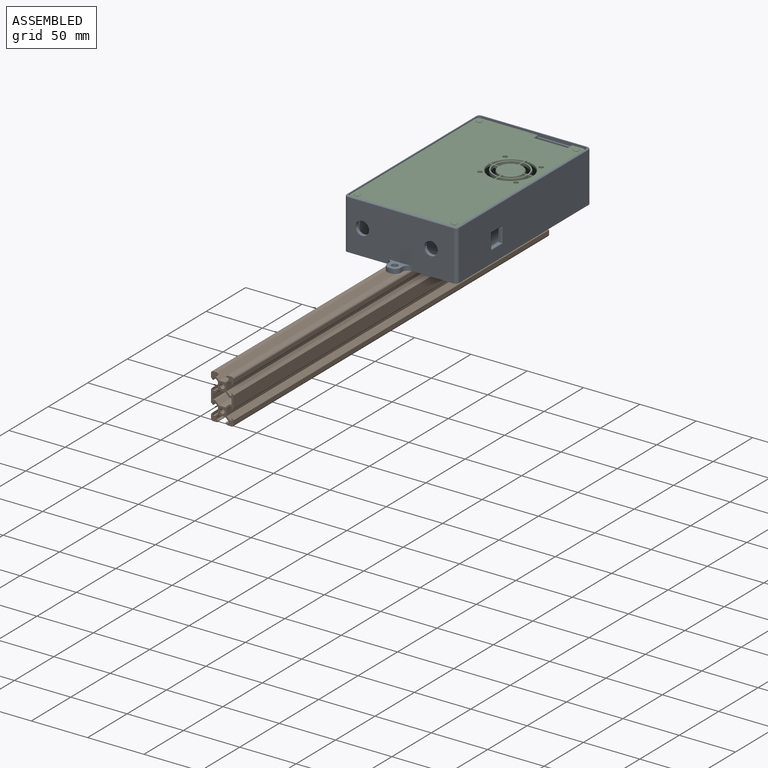
[diagram: assembled view]
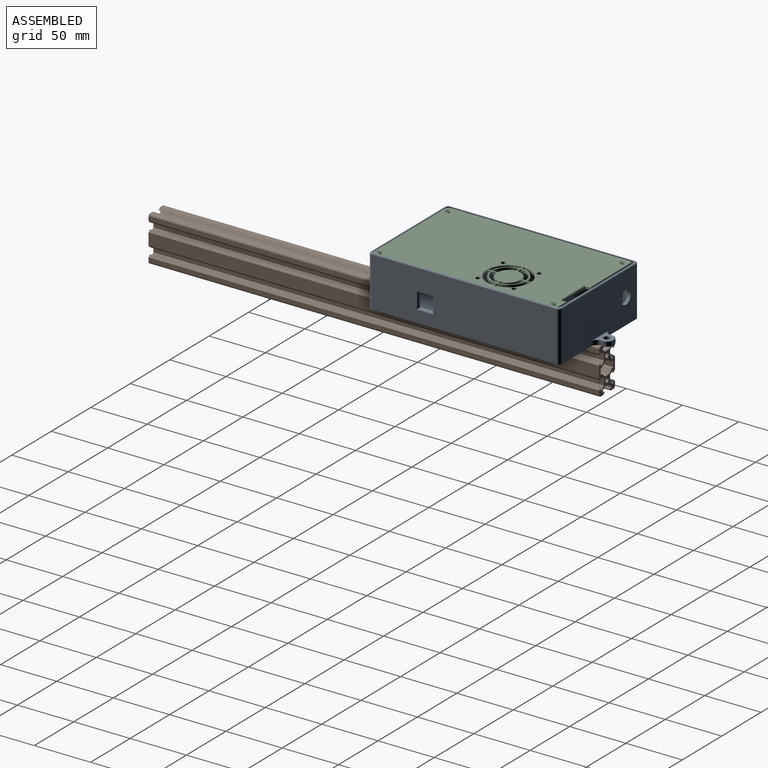
[diagram: assembled view, second angle]
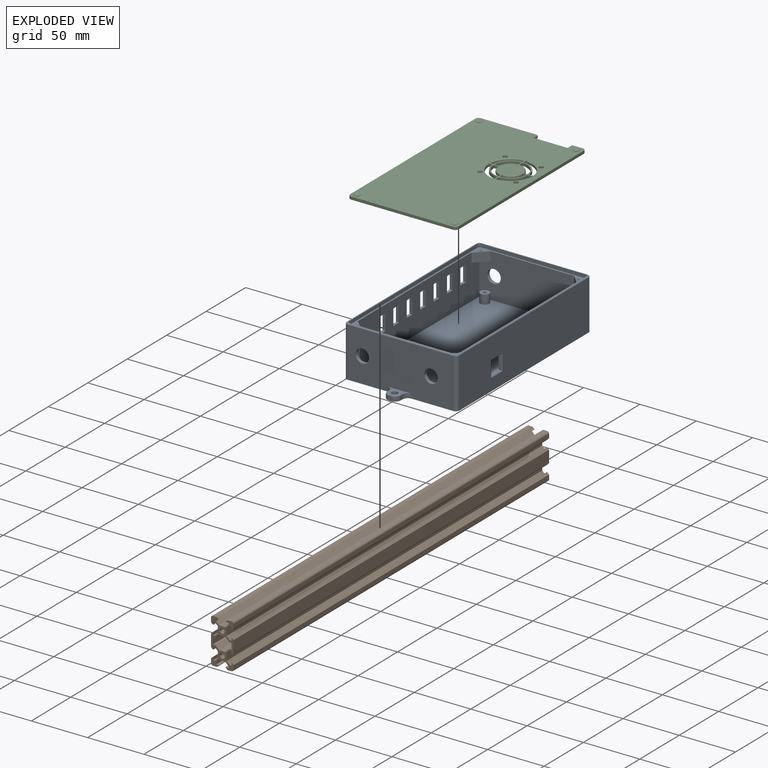
[diagram: exploded view]
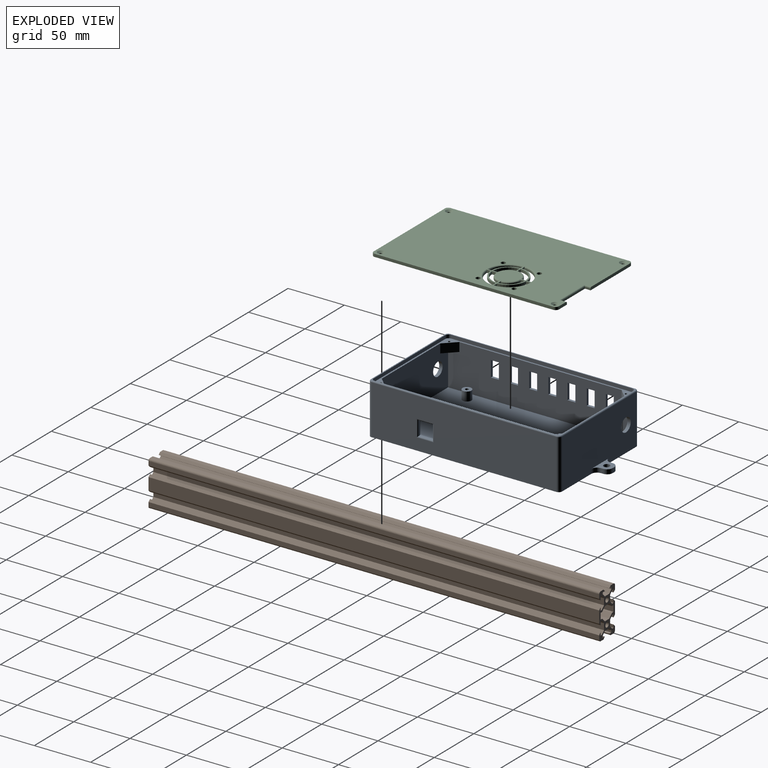
[diagram: exploded view, second angle]
ASSEMBLY  parts=3 mates=2
PART A: 149 faces, bbox 100.5x194x45 mm
  f0: plane 94x44mm, normal (0,-1,0), area 3821.8mm2, adj f8,f64,f65,f67,f70,f93,f138,f143
  f1: plane 164x39mm, normal (-1,0,0), area 6067mm2, adj f2,f13,f14,f15,f32,f33,f34,f35
  f2: plane 94x39mm, normal (0,-1,0), area 3392.9mm2, adj f1,f4,f13,f14,f66,f75,f76,f77
  f3: plane 164x44mm, normal (-1,0,0), area 6208mm2, adj f8,f69,f70,f97,f99,f100,f101,f102
  f4: plane 164x39mm, normal (1,0,0), area 5550mm2, adj f2,f13,f14,f15,f36,f37,f38,f39
  f5: plane 168x98mm, normal (0,0,1), area 322.1mm2, adj f9,f10,f11,f12,f71,f72,f73,f74
  f6: plane 164x44mm, normal (1,0,0), area 6991mm2, adj f8,f67,f68,f92,f127,f128,f129,f130
  f7: plane 94x44mm, normal (0,1,0), area 3934.9mm2, adj f8,f66,f68,f69,f96,f134,f145,f146
  f8: plane 194x100mm, normal (0,0,-1), area 17232.8mm2, adj f0,f3,f6,f7,f67,f68,f69,f70
  f9: plane 90.8x3mm, normal (0,-1,0), area 272.4mm2, adj f5,f13,f71,f74
  f10: plane 160.8x3mm, normal (1,0,0), area 482.4mm2, adj f5,f13,f71,f72
  f11: plane 90.8x3mm, normal (0,1,0), area 272.4mm2, adj f5,f13,f72,f73
  f12: plane 160.8x3mm, normal (-1,0,0), area 482.4mm2, adj f5,f13,f73,f74
  f13: plane 166.8x96.8mm, normal (0,0,1), area 909.9mm2, adj f1,f2,f4,f9,f10,f11,f12,f15
  f14: plane 164x94mm, normal (0,0,1), area 15214.9mm2, adj f1,f2,f4,f15,f17,f21,f25,f29
  f15: plane 94x39mm, normal (0,1,0), area 3279.8mm2, adj f1,f4,f13,f14,f64,f65,f79,f80
  f16: cylinder r=1.5mm len=8mm, axis (0,0,-1), area 75.4mm2, adj f18,f19
  f17: cylinder r=4mm len=8mm, axis (0,0,-1), area 201.1mm2, adj f14,f18
  f18: plane 8x8mm, normal (0,0,1), area 43.2mm2, adj f16,f17
  f19: plane 3x3mm, normal (0,0,1), area 7.1mm2, adj f16
  f20: cylinder r=1.5mm len=8mm, axis (0,0,-1), area 75.4mm2, adj f22,f23
  f21: cylinder r=4mm len=8mm, axis (0,0,-1), area 201.1mm2, adj f14,f22
  f22: plane 8x8mm, normal (0,0,1), area 43.2mm2, adj f20,f21
  f23: plane 3x3mm, normal (0,0,1), area 7.1mm2, adj f20
  f24: cylinder r=1.5mm len=8mm, axis (0,0,-1), area 75.4mm2, adj f26,f27
  f25: cylinder r=4mm len=8mm, axis (0,0,-1), area 201.1mm2, adj f14,f26
  f26: plane 8x8mm, normal (0,0,1), area 43.2mm2, adj f24,f25
  f27: plane 3x3mm, normal (0,0,1), area 7.1mm2, adj f24
  f28: cylinder r=1.5mm len=8mm, axis (0,0,-1), area 75.4mm2, adj f30,f31
  f29: cylinder r=4mm len=8mm, axis (0,0,-1), area 201.1mm2, adj f14,f30
  f30: plane 8x8mm, normal (0,0,1), area 43.2mm2, adj f28,f29
  f31: plane 3x3mm, normal (0,0,1), area 7.1mm2, adj f28
  f32: plane 13x2mm, normal (0,1,0), area 26mm2, adj f1,f33,f34,f128
  f33: plane 13x2mm, normal (0,0,-1), area 26mm2, adj f1,f32,f35,f127
  f34: plane 13x2mm, normal (0,0,1), area 26mm2, adj f1,f32,f35,f130
  f35: plane 13x2mm, normal (0,-1,0), area 26mm2, adj f1,f33,f34,f129
  f36: plane 7x2mm, normal (0,0,1), area 14mm2, adj f4,f37,f39,f124
  f37: plane 14x2mm, normal (0,1,0), area 28mm2, adj f4,f36,f38,f126
  f38: plane 7x2mm, normal (0,0,-1), area 14mm2, adj f4,f37,f39,f125
  f39: plane 14x2mm, normal (0,-1,0), area 28mm2, adj f4,f36,f38,f123
  f40: plane 7x2mm, normal (0,0,1), area 14mm2, adj f4,f41,f43,f119
  f41: plane 14x2mm, normal (0,1,0), area 28mm2, adj f4,f40,f42,f120
  f42: plane 7x2mm, normal (0,0,-1), area 14mm2, adj f4,f41,f43,f122
  f43: plane 14x2mm, normal (0,-1,0), area 28mm2, adj f4,f40,f42,f121
  f44: plane 7x2mm, normal (0,0,1), area 14mm2, adj f4,f45,f47,f116
  f45: plane 14x2mm, normal (0,1,0), area 28mm2, adj f4,f44,f46,f118
  f46: plane 7x2mm, normal (0,0,-1), area 14mm2, adj f4,f45,f47,f117
  f47: plane 14x2mm, normal (0,-1,0), area 28mm2, adj f4,f44,f46,f115
  f48: plane 7x2mm, normal (0,0,1), area 14mm2, adj f4,f49,f51,f112
  f49: plane 14x2mm, normal (0,1,0), area 28mm2, adj f4,f48,f50,f114
  f50: plane 7x2mm, normal (0,0,-1), area 14mm2, adj f4,f49,f51,f113
  f51: plane 14x2mm, normal (0,-1,0), area 28mm2, adj f4,f48,f50,f111
  f52: plane 7x2mm, normal (0,0,1), area 14mm2, adj f4,f53,f55,f108
  f53: plane 14x2mm, normal (0,1,0), area 28mm2, adj f4,f52,f54,f110
  f54: plane 7x2mm, normal (0,0,-1), area 14mm2, adj f4,f53,f55,f109
  f55: plane 14x2mm, normal (0,-1,0), area 28mm2, adj f4,f52,f54,f107
  f56: plane 7x2mm, normal (0,0,1), area 14mm2, adj f4,f57,f59,f104
  f57: plane 14x2mm, normal (0,1,0), area 28mm2, adj f4,f56,f58,f106
  f58: plane 7x2mm, normal (0,0,-1), area 14mm2, adj f4,f57,f59,f105
  f59: plane 14x2mm, normal (0,-1,0), area 28mm2, adj f4,f56,f58,f103
  f60: plane 7x2mm, normal (0,0,-1), area 14mm2, adj f4,f61,f63,f100
  f61: plane 14x2mm, normal (0,-1,0), area 28mm2, adj f4,f60,f62,f102
  f62: plane 7x2mm, normal (0,0,1), area 14mm2, adj f4,f61,f63,f101
  f63: plane 14x2mm, normal (0,1,0), area 28mm2, adj f4,f60,f62,f99
  f64: cylinder r=6mm len=12mm, axis (0,-1,0), area 113.1mm2, adj f0,f15
  f65: cylinder r=6mm len=12mm, axis (0,1,0), area 113.1mm2, adj f0,f15
  f66: cylinder r=6mm len=12mm, axis (0,1,0), area 113.1mm2, adj f2,f7
  f67: cylinder r=3mm len=44mm, axis (0,0,1), area 207.3mm2, adj f0,f6,f8,f91
  f68: cylinder r=3mm len=44mm, axis (0,0,-1), area 207.3mm2, adj f6,f7,f8,f94
  f69: cylinder r=3mm len=44mm, axis (0,0,1), area 207.3mm2, adj f3,f7,f8,f98
  f70: cylinder r=3mm len=44mm, axis (0,0,-1), area 207.3mm2, adj f0,f3,f8,f95
  f71: cylinder r=3mm len=3mm, axis (0,0,1), area 14.1mm2, adj f5,f9,f10,f13
  f72: cylinder r=3mm len=3mm, axis (0,0,-1), area 14.1mm2, adj f5,f10,f11,f13
  f73: cylinder r=3mm len=3mm, axis (0,0,1), area 14.1mm2, adj f5,f11,f12,f13
  f74: cylinder r=3mm len=3mm, axis (0,0,-1), area 14.1mm2, adj f5,f9,f12,f13
  f75: plane 10x10mm, normal (0.71,-0.71,0), area 113.1mm2, adj f2,f4,f13,f76
  f76: plane 10x10mm, normal (0,0,-1), area 50mm2, adj f2,f4,f75
  f77: plane 10x10mm, normal (-0.71,-0.71,0), area 113.1mm2, adj f1,f2,f13,f78
  f78: plane 10x10mm, normal (0,0,-1), area 50mm2, adj f1,f2,f77
  f79: plane 10x10mm, normal (-0.71,0.71,0), area 113.1mm2, adj f1,f13,f15,f80
  f80: plane 10x10mm, normal (0,0,-1), area 50mm2, adj f1,f15,f79
  f81: plane 10x10mm, normal (0.71,0.71,0), area 113.1mm2, adj f4,f13,f15,f82
  f82: plane 10x10mm, normal (0,0,-1), area 50mm2, adj f4,f15,f81
  f83: cone r=0mm half-angle=59deg, axis (0,0,1), area 3.7mm2, adj f84
  f84: cylinder r=1mm len=6mm, axis (0,0,1), area 37.7mm2, adj f13,f83
  f85: cone r=0mm half-angle=59deg, axis (0,0,1), area 3.7mm2, adj f86
  f86: cylinder r=1mm len=6mm, axis (0,0,1), area 37.7mm2, adj f13,f85
  f87: cone r=0mm half-angle=59deg, axis (0,0,1), area 3.7mm2, adj f88
  f88: cylinder r=1mm len=6mm, axis (0,0,1), area 37.7mm2, adj f13,f87
  f89: cone r=0mm half-angle=59deg, axis (0,0,1), area 3.7mm2, adj f90
  f90: cylinder r=1mm len=6mm, axis (0,0,1), area 37.7mm2, adj f13,f89
  f91: torus R=2mm, axis (0,0,1), area 6.5mm2, adj f5,f67,f92,f93
  f92: cylinder r=1mm len=164mm, axis (0,-1,0), area 257.6mm2, adj f5,f6,f91,f94
  f93: cylinder r=1mm len=94mm, axis (-1,0,0), area 147.7mm2, adj f0,f5,f91,f95
  f94: torus R=2mm, axis (0,0,1), area 6.5mm2, adj f5,f68,f92,f96
  f95: torus R=2mm, axis (0,0,1), area 6.5mm2, adj f5,f70,f93,f97
  f96: cylinder r=1mm len=94mm, axis (1,0,0), area 147.7mm2, adj f5,f7,f94,f98
  f97: cylinder r=1mm len=164mm, axis (0,1,0), area 257.6mm2, adj f3,f5,f95,f98
  f98: torus R=2mm, axis (0,0,1), area 6.5mm2, adj f5,f69,f96,f97
  f99: cylinder r=1mm len=16mm, axis (0,0,-1), area 23.1mm2, adj f3,f63,f100,f101
  f100: cylinder r=1mm len=9mm, axis (0,-1,0), area 12.1mm2, adj f3,f60,f99,f102
  f101: cylinder r=1mm len=9mm, axis (0,1,0), area 12.1mm2, adj f3,f62,f99,f102
  f102: cylinder r=1mm len=16mm, axis (0,0,1), area 23.1mm2, adj f3,f61,f100,f101
  f103: cylinder r=1mm len=16mm, axis (0,0,1), area 23.1mm2, adj f3,f59,f104,f105
  f104: cylinder r=1mm len=9mm, axis (0,1,0), area 12.1mm2, adj f3,f56,f103,f106
  f105: cylinder r=1mm len=9mm, axis (0,-1,0), area 12.1mm2, adj f3,f58,f103,f106
  f106: cylinder r=1mm len=16mm, axis (0,0,-1), area 23.1mm2, adj f3,f57,f104,f105
  f107: cylinder r=1mm len=16mm, axis (0,0,1), area 23.1mm2, adj f3,f55,f108,f109
  f108: cylinder r=1mm len=9mm, axis (0,1,0), area 12.1mm2, adj f3,f52,f107,f110
  f109: cylinder r=1mm len=9mm, axis (0,-1,0), area 12.1mm2, adj f3,f54,f107,f110
  f110: cylinder r=1mm len=16mm, axis (0,0,-1), area 23.1mm2, adj f3,f53,f108,f109
  f111: cylinder r=1mm len=16mm, axis (0,0,1), area 23.1mm2, adj f3,f51,f112,f113
  f112: cylinder r=1mm len=9mm, axis (0,1,0), area 12.1mm2, adj f3,f48,f111,f114
  f113: cylinder r=1mm len=9mm, axis (0,-1,0), area 12.1mm2, adj f3,f50,f111,f114
  f114: cylinder r=1mm len=16mm, axis (0,0,-1), area 23.1mm2, adj f3,f49,f112,f113
  f115: cylinder r=1mm len=16mm, axis (0,0,1), area 23.1mm2, adj f3,f47,f116,f117
  f116: cylinder r=1mm len=9mm, axis (0,1,0), area 12.1mm2, adj f3,f44,f115,f118
  f117: cylinder r=1mm len=9mm, axis (0,-1,0), area 12.1mm2, adj f3,f46,f115,f118
  f118: cylinder r=1mm len=16mm, axis (0,0,-1), area 23.1mm2, adj f3,f45,f116,f117
  f119: cylinder r=1mm len=9mm, axis (0,1,0), area 12.1mm2, adj f3,f40,f120,f121
  f120: cylinder r=1mm len=16mm, axis (0,0,-1), area 23.1mm2, adj f3,f41,f119,f122
  f121: cylinder r=1mm len=16mm, axis (0,0,1), area 23.1mm2, adj f3,f43,f119,f122
  f122: cylinder r=1mm len=9mm, axis (0,-1,0), area 12.1mm2, adj f3,f42,f120,f121
  f123: cylinder r=1mm len=16mm, axis (0,0,1), area 23.1mm2, adj f3,f39,f124,f125
  f124: cylinder r=1mm len=9mm, axis (0,1,0), area 12.1mm2, adj f3,f36,f123,f126
  f125: cylinder r=1mm len=9mm, axis (0,-1,0), area 12.1mm2, adj f3,f38,f123,f126
  f126: cylinder r=1mm len=16mm, axis (0,0,-1), area 23.1mm2, adj f3,f37,f124,f125
  f127: cylinder r=1mm len=15mm, axis (0,-1,0), area 21.6mm2, adj f6,f33,f128,f129
  f128: cylinder r=1mm len=15mm, axis (0,0,-1), area 21.6mm2, adj f6,f32,f127,f130
  f129: cylinder r=1mm len=15mm, axis (0,0,1), area 21.6mm2, adj f6,f35,f127,f130
  f130: cylinder r=1mm len=15mm, axis (0,1,0), area 21.6mm2, adj f6,f34,f128,f129
  f131: plane 4x2mm, normal (-1,0,0), area 8mm2, adj f8,f134,f145,f148
  f132: plane 4x2mm, normal (1,0,0), area 8mm2, adj f8,f134,f146,f147
  f133: plane 4x2mm, normal (0,1,0), area 8mm2, adj f8,f134,f147,f148
  f134: plane 22x12mm, normal (0,0,1), area 120.2mm2, adj f7,f131,f132,f133,f139,f145,f146,f147
  f135: plane 4x2mm, normal (-1,0,0), area 8mm2, adj f8,f138,f141,f144
  f136: plane 4x2mm, normal (0,-1,0), area 8mm2, adj f8,f138,f141,f142
  f137: plane 4x2mm, normal (1,0,0), area 8mm2, adj f8,f138,f142,f143
  f138: plane 22x12mm, normal (0,0,1), area 120.2mm2, adj f0,f135,f136,f137,f140,f141,f142,f143
  f139: cylinder r=2.75mm len=5.5mm, axis (0,0,-1), area 69.1mm2, adj f8,f134
  f140: cylinder r=2.75mm len=5.5mm, axis (0,0,-1), area 69.1mm2, adj f8,f138
  f141: cylinder r=5mm len=5mm, axis (0,0,-1), area 31.4mm2, adj f8,f135,f136,f138
  f142: cylinder r=5mm len=5mm, axis (0,0,1), area 31.4mm2, adj f8,f136,f137,f138
  f143: cylinder r=5mm len=5mm, axis (0,0,1), area 31.4mm2, adj f0,f8,f137,f138
  f144: cylinder r=5mm len=5mm, axis (0,0,-1), area 31.4mm2, adj f0,f8,f135,f138
  f145: cylinder r=5mm len=5mm, axis (0,0,-1), area 31.4mm2, adj f7,f8,f131,f134
  f146: cylinder r=5mm len=5mm, axis (0,0,1), area 31.4mm2, adj f7,f8,f132,f134
  f147: cylinder r=5mm len=5mm, axis (0,0,1), area 31.4mm2, adj f8,f132,f133,f134
  f148: cylinder r=5mm len=5mm, axis (0,0,-1), area 31.4mm2, adj f8,f131,f133,f134
PART B: 84 faces, bbox 40x20x400 mm
  f0: plane 400x1.96mm, normal (-1,0,0), area 784mm2, adj f1,f41,f82,f83
  f1: plane 400x3.4mm, normal (-0.71,0.71,0), area 1923.3mm2, adj f0,f2,f82,f83
  f2: plane 400x5.68mm, normal (-1,0,0), area 2272mm2, adj f1,f3,f82,f83
  f3: plane 400x3.4mm, normal (-0.71,-0.71,0), area 1923.3mm2, adj f2,f4,f82,f83
  f4: plane 400x1.96mm, normal (-1,0,0), area 784mm2, adj f3,f5,f82,f83
  f5: plane 400x5.4mm, normal (0,-1,0), area 2159.5mm2, adj f4,f40,f82,f83
  f6: plane 400x1.64mm, normal (-1,0,0), area 656mm2, adj f7,f81,f82,f83
  f7: plane 400x2.66mm, normal (0,-1,0), area 1063.7mm2, adj f6,f8,f82,f83
  f8: plane 400x1.8mm, normal (-0.71,0.71,0), area 1018.2mm2, adj f7,f9,f82,f83
  f9: plane 400x3.56mm, normal (0,1,0), area 1424mm2, adj f8,f10,f82,f83
  f10: cylinder r=1.8mm len=400mm, axis (0,0,1), area 1131mm2, adj f9,f11,f82,f83
  f11: plane 400x3.56mm, normal (1,0,0), area 1424mm2, adj f10,f12,f82,f83
  f12: plane 400x1.8mm, normal (0.71,-0.71,0), area 1018.2mm2, adj f11,f13,f82,f83
  f13: plane 400x2.66mm, normal (-1,0,0), area 1063.7mm2, adj f12,f14,f82,f83
  f14: plane 400x1.64mm, normal (0,-1,0), area 656mm2, adj f13,f15,f82,f83
  f15: plane 400x2.66mm, normal (0.71,-0.71,0), area 1504.3mm2, adj f14,f16,f82,f83
  f16: plane 400x5.68mm, normal (1,0,0), area 2272mm2, adj f15,f17,f82,f83
  f17: plane 400x2.66mm, normal (0.71,0.71,0), area 1504.3mm2, adj f16,f18,f82,f83
  f18: plane 400x1.64mm, normal (0,1,0), area 656mm2, adj f17,f19,f82,f83
  f19: plane 400x2.66mm, normal (-1,0,0), area 1063.7mm2, adj f18,f20,f82,f83
  f20: plane 400x1.8mm, normal (0.71,0.71,0), area 1018.2mm2, adj f19,f21,f82,f83
  f21: plane 400x3.56mm, normal (1,0,0), area 1424mm2, adj f20,f22,f82,f83
  f22: cylinder r=1.8mm len=400mm, axis (0,0,1), area 1131mm2, adj f21,f23,f82,f83
  f23: plane 400x3.56mm, normal (0,-1,0), area 1424mm2, adj f22,f24,f82,f83
  f24: plane 400x1.8mm, normal (-0.71,-0.71,0), area 1018.2mm2, adj f23,f25,f82,f83
  f25: plane 400x2.66mm, normal (0,1,0), area 1063.7mm2, adj f24,f26,f82,f83
  f26: plane 400x1.64mm, normal (-1,0,0), area 656mm2, adj f25,f27,f82,f83
  f27: plane 400x2.66mm, normal (-0.71,-0.71,0), area 1504.3mm2, adj f26,f28,f82,f83
  f28: plane 400x5.68mm, normal (0,-1,0), area 2272mm2, adj f27,f29,f82,f83
  f29: plane 400x2.66mm, normal (0.71,-0.71,0), area 1504.3mm2, adj f28,f30,f82,f83
  f30: plane 400x1.64mm, normal (1,0,0), area 656mm2, adj f29,f31,f82,f83
  f31: plane 400x2.66mm, normal (0,1,0), area 1063.7mm2, adj f30,f32,f82,f83
  f32: plane 400x1.8mm, normal (0.71,-0.71,0), area 1018.2mm2, adj f31,f33,f82,f83
  f33: plane 400x10.72mm, normal (0,-1,0), area 4288mm2, adj f32,f34,f82,f83
  f34: plane 400x1.8mm, normal (-0.71,-0.71,0), area 1018.2mm2, adj f33,f35,f82,f83
  f35: plane 400x2.66mm, normal (0,1,0), area 1063.7mm2, adj f34,f36,f82,f83
  f36: plane 400x1.64mm, normal (-1,0,0), area 656mm2, adj f35,f37,f82,f83
  f37: plane 400x2.66mm, normal (-0.71,-0.71,0), area 1504.3mm2, adj f36,f38,f82,f83
  f38: plane 400x5.68mm, normal (0,-1,0), area 2272mm2, adj f37,f39,f82,f83
  f39: plane 400x2.66mm, normal (0.71,-0.71,0), area 1504.3mm2, adj f38,f48,f82,f83
  f40: plane 400x1.96mm, normal (1,0,0), area 784mm2, adj f5,f45,f82,f83
  f41: plane 400x5.4mm, normal (0,1,0), area 2159.5mm2, adj f0,f42,f82,f83
  f42: plane 400x1.96mm, normal (1,0,0), area 784mm2, adj f41,f43,f82,f83
  f43: plane 400x3.4mm, normal (0.71,0.71,0), area 1923.3mm2, adj f42,f44,f82,f83
  f44: plane 400x5.68mm, normal (1,0,0), area 2272mm2, adj f43,f45,f82,f83
  f45: plane 400x3.4mm, normal (0.71,-0.71,0), area 1923.3mm2, adj f40,f44,f82,f83
  f46: cylinder r=2.1mm len=400mm, axis (0,0,1), area 5277.9mm2, adj f82,f83
  f47: cylinder r=2.1mm len=400mm, axis (0,0,1), area 5277.9mm2, adj f82,f83
  f48: plane 400x1.64mm, normal (1,0,0), area 656mm2, adj f39,f49,f82,f83
  f49: plane 400x2.66mm, normal (0,1,0), area 1063.7mm2, adj f48,f50,f82,f83
  f50: plane 400x1.8mm, normal (0.71,-0.71,0), area 1018.2mm2, adj f49,f51,f82,f83
  f51: plane 400x3.56mm, normal (0,-1,0), area 1424mm2, adj f50,f52,f82,f83
  f52: cylinder r=1.8mm len=400mm, axis (0,0,1), area 1131mm2, adj f51,f53,f82,f83
  f53: plane 400x3.56mm, normal (-1,0,0), area 1424mm2, adj f52,f54,f82,f83
  f54: plane 400x1.8mm, normal (-0.71,0.71,0), area 1018.2mm2, adj f53,f55,f82,f83
  f55: plane 400x2.66mm, normal (1,0,0), area 1063.7mm2, adj f54,f56,f82,f83
  f56: plane 400x1.64mm, normal (0,1,0), area 656mm2, adj f55,f57,f82,f83
  f57: plane 400x2.66mm, normal (-0.71,0.71,0), area 1504.3mm2, adj f56,f58,f82,f83
  f58: plane 400x5.68mm, normal (-1,0,0), area 2272mm2, adj f57,f59,f82,f83
  f59: plane 400x2.66mm, normal (-0.71,-0.71,0), area 1504.3mm2, adj f58,f60,f82,f83
  f60: plane 400x1.64mm, normal (0,-1,0), area 656mm2, adj f59,f61,f82,f83
  f61: plane 400x2.66mm, normal (1,0,0), area 1063.7mm2, adj f60,f62,f82,f83
  f62: plane 400x1.8mm, normal (-0.71,-0.71,0), area 1018.2mm2, adj f61,f63,f82,f83
  f63: plane 400x3.56mm, normal (-1,0,0), area 1424mm2, adj f62,f64,f82,f83
  f64: cylinder r=1.8mm len=400mm, axis (0,0,1), area 1131mm2, adj f63,f65,f82,f83
  f65: plane 400x3.56mm, normal (0,1,0), area 1424mm2, adj f64,f66,f82,f83
  f66: plane 400x1.8mm, normal (0.71,0.71,0), area 1018.2mm2, adj f65,f67,f82,f83
  f67: plane 400x2.66mm, normal (0,-1,0), area 1063.7mm2, adj f66,f68,f82,f83
  f68: plane 400x1.64mm, normal (1,0,0), area 656mm2, adj f67,f69,f82,f83
  f69: plane 400x2.66mm, normal (0.71,0.71,0), area 1504.3mm2, adj f68,f70,f82,f83
  f70: plane 400x5.68mm, normal (0,1,0), area 2272mm2, adj f69,f71,f82,f83
  f71: plane 400x2.66mm, normal (-0.71,0.71,0), area 1504.3mm2, adj f70,f72,f82,f83
  f72: plane 400x1.64mm, normal (-1,0,0), area 656mm2, adj f71,f73,f82,f83
  f73: plane 400x2.66mm, normal (0,-1,0), area 1063.7mm2, adj f72,f74,f82,f83
  f74: plane 400x1.8mm, normal (-0.71,0.71,0), area 1018.2mm2, adj f73,f75,f82,f83
  f75: plane 400x10.72mm, normal (0,1,0), area 4288mm2, adj f74,f76,f82,f83
  f76: plane 400x1.8mm, normal (0.71,0.71,0), area 1018.2mm2, adj f75,f77,f82,f83
  f77: plane 400x2.66mm, normal (0,-1,0), area 1063.7mm2, adj f76,f78,f82,f83
  f78: plane 400x1.64mm, normal (1,0,0), area 656mm2, adj f77,f79,f82,f83
  f79: plane 400x2.66mm, normal (0.71,0.71,0), area 1504.3mm2, adj f78,f80,f82,f83
  f80: plane 400x5.68mm, normal (0,1,0), area 2272mm2, adj f79,f81,f82,f83
  f81: plane 400x2.66mm, normal (-0.71,0.71,0), area 1504.3mm2, adj f6,f80,f82,f83
  f82: plane 40x20mm, normal (0,0,-1), area 297.2mm2, adj f0,f1,f2,f3,f4,f5,f6,f7
  f83: plane 40x20mm, normal (0,0,1), area 297.2mm2, adj f0,f1,f2,f3,f4,f5,f6,f7
PART C: 69 faces, bbox 96.3x164.5x2.5 mm
  f0: plane 50.3x2.5mm, normal (0,1,0), area 125.5mm2, adj f1,f2,f9,f16,f68
  f1: plane 164.5x96.3mm, normal (0,0,1), area 14691.9mm2, adj f0,f3,f4,f5,f6,f7,f8,f9
  f2: plane 164.5x96.3mm, normal (0,0,-1), area 14997.6mm2, adj f0,f3,f4,f5,f6,f7,f8,f9
  f3: plane 90.3x2.5mm, normal (0,-1,0), area 225.8mm2, adj f1,f2,f7,f10
  f4: plane 158.5x2.5mm, normal (1,0,0), area 396.2mm2, adj f1,f2,f7,f8
  f5: plane 10x2.5mm, normal (0,1,0), area 24.8mm2, adj f1,f2,f8,f15,f66
  f6: plane 158.5x2.5mm, normal (-1,0,0), area 396.2mm2, adj f1,f2,f9,f10
  f7: cylinder r=3mm len=3mm, axis (0,0,1), area 11.8mm2, adj f1,f2,f3,f4
  f8: cylinder r=3mm len=3mm, axis (0,0,-1), area 11.8mm2, adj f1,f2,f4,f5
  f9: cylinder r=3mm len=3mm, axis (0,0,1), area 11.8mm2, adj f0,f1,f2,f6
  f10: cylinder r=3mm len=3mm, axis (0,0,-1), area 11.8mm2, adj f1,f2,f3,f6
  f11: plane 4.51x2.5mm, normal (0,-1,0), area 9mm2, adj f1,f2,f12,f13,f65
  f12: cylinder r=11mm len=10.38mm, axis (0,0,1), area 24.1mm2, adj f2,f11,f14,f65
  f13: cylinder r=14.5mm len=13.89mm, axis (0,0,1), area 53.9mm2, adj f1,f2,f11,f14
  f14: plane 4.51x2.5mm, normal (-1,0,0), area 9mm2, adj f1,f2,f12,f13,f65
  f15: plane 5x1.5mm, normal (-1,0,0), area 7.5mm2, adj f2,f5,f17,f66
  f16: plane 5x1.5mm, normal (1,0,0), area 7.5mm2, adj f0,f2,f17,f68
  f17: plane 30x1.5mm, normal (0,1,0), area 45mm2, adj f2,f15,f16,f67
  f18: cylinder r=19mm len=18.39mm, axis (0,0,1), area 43mm2, adj f2,f19,f20,f58
  f19: plane 4.31x2.51mm, normal (0,1,0), area 8.5mm2, adj f1,f2,f18,f21,f58
  f20: plane 4.31x2.51mm, normal (1,0,0), area 8.5mm2, adj f1,f2,f18,f21,f58
  f21: cylinder r=15.7mm len=15.09mm, axis (0,0,1), area 58.7mm2, adj f1,f2,f19,f20
  f22: cylinder r=19mm len=18.39mm, axis (0,0,1), area 43mm2, adj f2,f23,f24,f59
  f23: plane 4.31x2.51mm, normal (1,0,0), area 8.5mm2, adj f1,f2,f22,f25,f59
  f24: plane 4.31x2.51mm, normal (0,-1,0), area 8.5mm2, adj f1,f2,f22,f25,f59
  f25: cylinder r=15.7mm len=15.09mm, axis (0,0,1), area 58.7mm2, adj f1,f2,f23,f24
  f26: plane 4.31x2.51mm, normal (-1,0,0), area 8.5mm2, adj f1,f2,f27,f29,f60
  f27: cylinder r=15.7mm len=15.09mm, axis (0,0,1), area 58.7mm2, adj f1,f2,f26,f28
  f28: plane 4.31x2.51mm, normal (0,-1,0), area 8.5mm2, adj f1,f2,f27,f29,f60
  f29: cylinder r=19mm len=18.39mm, axis (0,0,1), area 43mm2, adj f2,f26,f28,f60
  f30: plane 4.51x2.5mm, normal (-1,0,0), area 9mm2, adj f1,f2,f31,f32,f62
  f31: cylinder r=11mm len=10.38mm, axis (0,0,1), area 24.1mm2, adj f2,f30,f33,f62
  f32: cylinder r=14.5mm len=13.89mm, axis (0,0,1), area 53.9mm2, adj f1,f2,f30,f33
  f33: plane 4.51x2.5mm, normal (0,1,0), area 9mm2, adj f1,f2,f31,f32,f62
  f34: cylinder r=19mm len=18.39mm, axis (0,0,1), area 43mm2, adj f2,f35,f36,f61
  f35: plane 4.31x2.51mm, normal (-1,0,0), area 8.5mm2, adj f1,f2,f34,f37,f61
  f36: plane 4.31x2.51mm, normal (0,1,0), area 8.5mm2, adj f1,f2,f34,f37,f61
  f37: cylinder r=15.7mm len=15.09mm, axis (0,0,1), area 58.7mm2, adj f1,f2,f35,f36
  f38: cylinder r=11mm len=10.38mm, axis (0,0,1), area 24.1mm2, adj f2,f39,f41,f63
  f39: plane 4.51x2.5mm, normal (0,1,0), area 9mm2, adj f1,f2,f38,f40,f63
  f40: cylinder r=14.5mm len=13.89mm, axis (0,0,1), area 53.9mm2, adj f1,f2,f39,f41
  f41: plane 4.51x2.5mm, normal (1,0,0), area 9mm2, adj f1,f2,f38,f40,f63
  f42: cylinder r=11mm len=10.38mm, axis (0,0,1), area 24.1mm2, adj f2,f43,f45,f64
  f43: plane 4.51x2.5mm, normal (1,0,0), area 9mm2, adj f1,f2,f42,f44,f64
  f44: cylinder r=14.5mm len=13.89mm, axis (0,0,1), area 53.9mm2, adj f1,f2,f43,f45
  f45: plane 4.51x2.5mm, normal (0,-1,0), area 9mm2, adj f1,f2,f42,f44,f64
  f46: cylinder r=1.5mm len=3mm, axis (0,0,1), area 9.4mm2, adj f2,f47
  f47: cone r=1.5mm half-angle=45deg, axis (0,0,1), area 30mm2, adj f1,f46
  f48: cylinder r=1.5mm len=3mm, axis (0,0,1), area 9.4mm2, adj f2,f49
  f49: cone r=1.5mm half-angle=45deg, axis (0,0,1), area 30mm2, adj f1,f48
  f50: cylinder r=1.5mm len=3mm, axis (0,0,1), area 9.4mm2, adj f2,f51
  f51: cone r=1.5mm half-angle=45deg, axis (0,0,1), area 30mm2, adj f1,f50
  f52: cylinder r=1.5mm len=3mm, axis (0,0,1), area 9.4mm2, adj f2,f53
  f53: cone r=1.5mm half-angle=45deg, axis (0,0,1), area 30mm2, adj f1,f52
  f54: cylinder r=2mm len=4mm, axis (0,0,1), area 31.4mm2, adj f1,f2
  f55: cylinder r=2mm len=4mm, axis (0,0,1), area 31.4mm2, adj f1,f2
  f56: cylinder r=2mm len=4mm, axis (0,0,1), area 31.4mm2, adj f1,f2
  f57: cylinder r=2mm len=4mm, axis (0,0,1), area 31.4mm2, adj f1,f2
  f58: torus R=20mm, axis (0,0,1), area 45.9mm2, adj f1,f18,f19,f20
  f59: torus R=20mm, axis (0,0,1), area 45.9mm2, adj f1,f22,f23,f24
  f60: torus R=20mm, axis (0,0,1), area 45.9mm2, adj f1,f26,f28,f29
  f61: torus R=20mm, axis (0,0,1), area 45.9mm2, adj f1,f34,f35,f36
  f62: torus R=10mm, axis (0,0,1), area 24.4mm2, adj f1,f30,f31,f33
  f63: torus R=10mm, axis (0,0,1), area 24.4mm2, adj f1,f38,f39,f41
  f64: torus R=10mm, axis (0,0,1), area 24.4mm2, adj f1,f42,f43,f45
  f65: torus R=10mm, axis (0,0,1), area 24.4mm2, adj f1,f11,f12,f14
  f66: cylinder r=1mm len=6mm, axis (0,-1,0), area 8.4mm2, adj f1,f5,f15,f67
  f67: cylinder r=1mm len=32mm, axis (-1,0,0), area 48.3mm2, adj f1,f17,f66,f68
  f68: cylinder r=1mm len=6mm, axis (0,1,0), area 8.4mm2, adj f0,f1,f16,f67
PLACE A t=(-128.69,-48.76,69.45)mm
PLACE B rot(axis=(-0.58,-0.58,-0.58),120deg) t=(-130.11,-357.76,-60.69)mm fixed
PLACE C t=(-128.44,-49.91,111.45)mm
MATE fastened C.f48 <-> A.f87  axis (0,0,-1) through (-85.29,-127.16,111.45)mm
MATE fastened B.f11 <-> A.f8  axis (0,0,1) through (-123.69,42.24,69.45)mm
